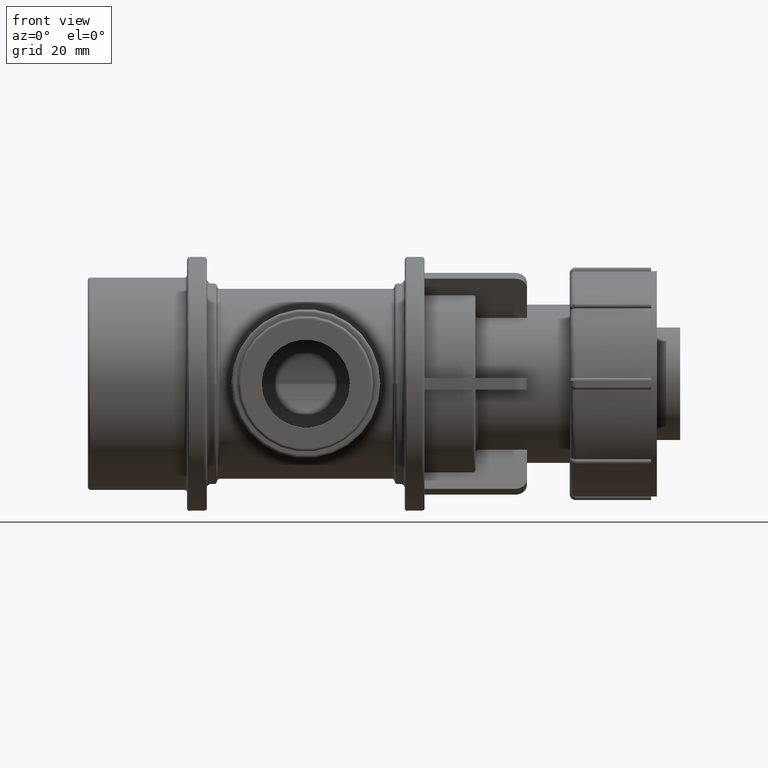
[diagram: clean part render]
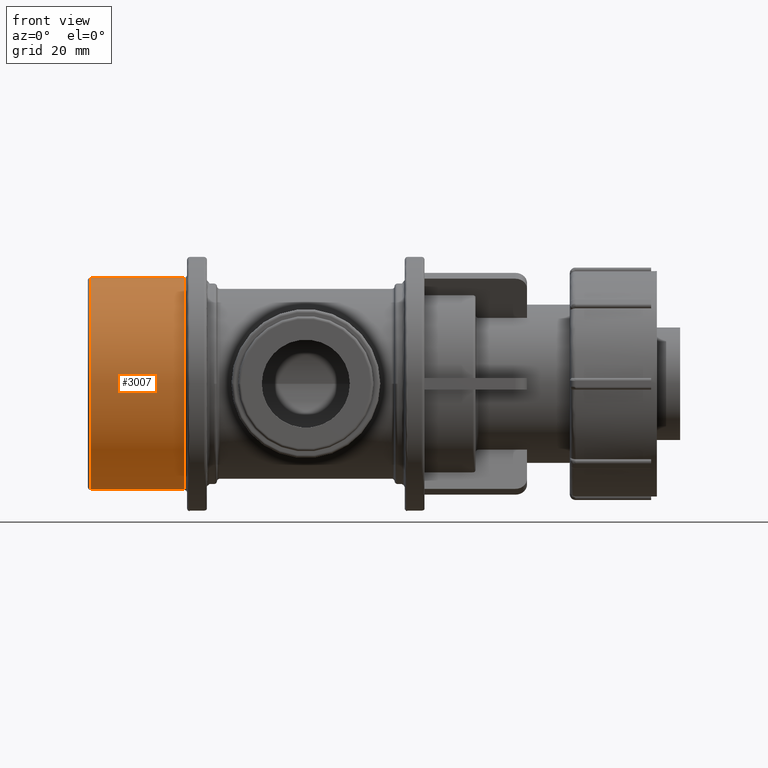
[diagram: same view with one face highlighted and labeled with its STEP entity id]
A machine part, front view. The second image highlights one B-rep face of the part: STEP entity #3007.
In plain terms, the highlighted cylindrical surface (bore or boss wall) has radius 37.5 mm, axis along (1, 0, 0).
Its self-contained STEP definition (entity closure, byte-faithful):
#512=CIRCLE('',#3229,37.5);
#513=CIRCLE('',#3231,37.5);
#740=FACE_BOUND('',#1015,.T.);
#800=FACE_OUTER_BOUND('',#1014,.T.);
#1014=EDGE_LOOP('',(#2068));
#1015=EDGE_LOOP('',(#2069));
#1337=VERTEX_POINT('',#4663);
#1338=VERTEX_POINT('',#4666);
#1631=EDGE_CURVE('',#1337,#1337,#512,.T.);
#1632=EDGE_CURVE('',#1338,#1338,#513,.T.);
#2068=ORIENTED_EDGE('',*,*,#1632,.F.);
#2069=ORIENTED_EDGE('',*,*,#1631,.F.);
#2937=CYLINDRICAL_SURFACE('',#3230,37.5);
#3007=ADVANCED_FACE('',(#800,#740),#2937,.T.);
#3229=AXIS2_PLACEMENT_3D('',#4664,#3616,#3617);
#3230=AXIS2_PLACEMENT_3D('',#4665,#3618,#3619);
#3231=AXIS2_PLACEMENT_3D('',#4667,#3620,#3621);
#3616=DIRECTION('center_axis',(-1.,0.,0.));
#3617=DIRECTION('ref_axis',(0.,-1.,1.83697019872103E-16));
#3618=DIRECTION('center_axis',(1.,0.,0.));
#3619=DIRECTION('ref_axis',(0.,1.,0.));
#3620=DIRECTION('center_axis',(1.,0.,0.));
#3621=DIRECTION('ref_axis',(0.,-1.,1.83697019872103E-16));
#4663=CARTESIAN_POINT('',(-75.9,37.5,-1.14810637420064E-14));
#4664=CARTESIAN_POINT('Origin',(-75.9,0.,0.));
#4665=CARTESIAN_POINT('Origin',(-59.4,0.,0.));
#4666=CARTESIAN_POINT('',(-42.9,37.5,-2.29621274840129E-15));
#4667=CARTESIAN_POINT('Origin',(-42.9,0.,0.));